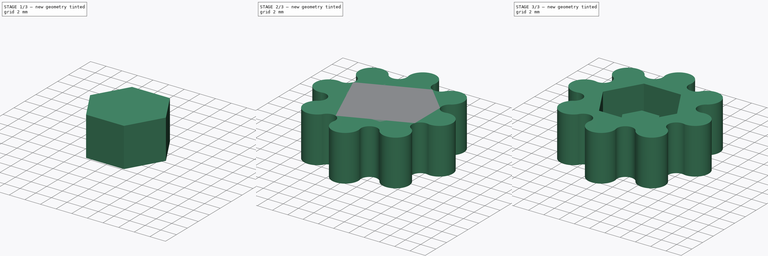
[diagram: build sequence overview — one tinted view per stage of 3, left to right]
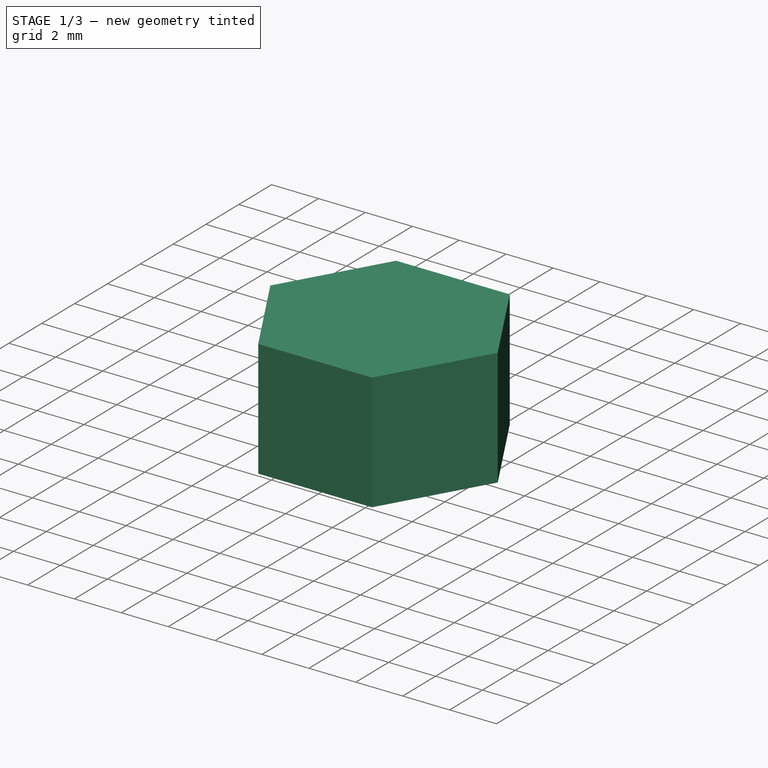
[diagram: stage 1 of 3 — iso view after this stage's code; geometry added in this stage tinted green]
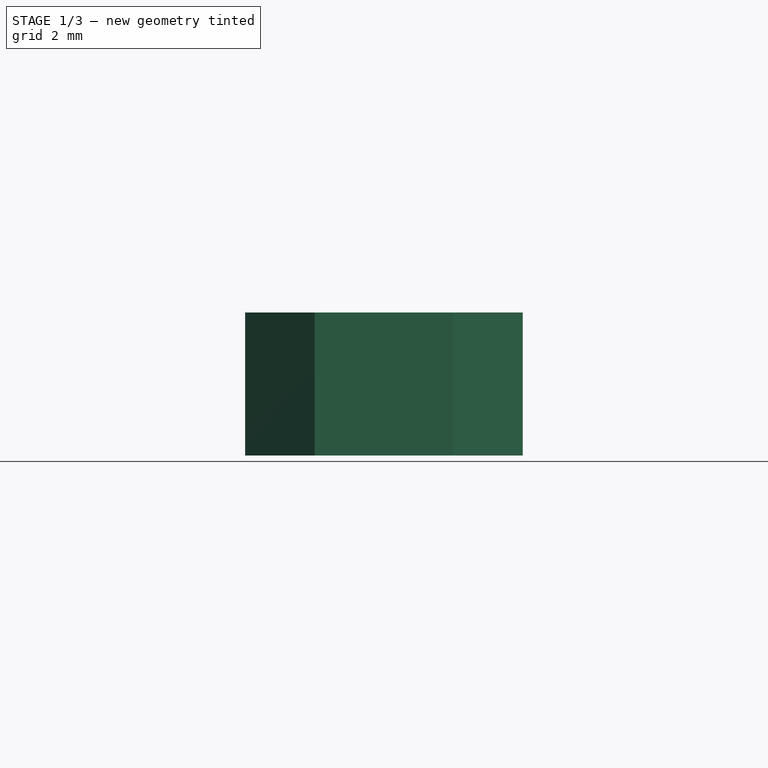
[diagram: stage 1 of 3 — front view after this stage's code; geometry added in this stage tinted green]
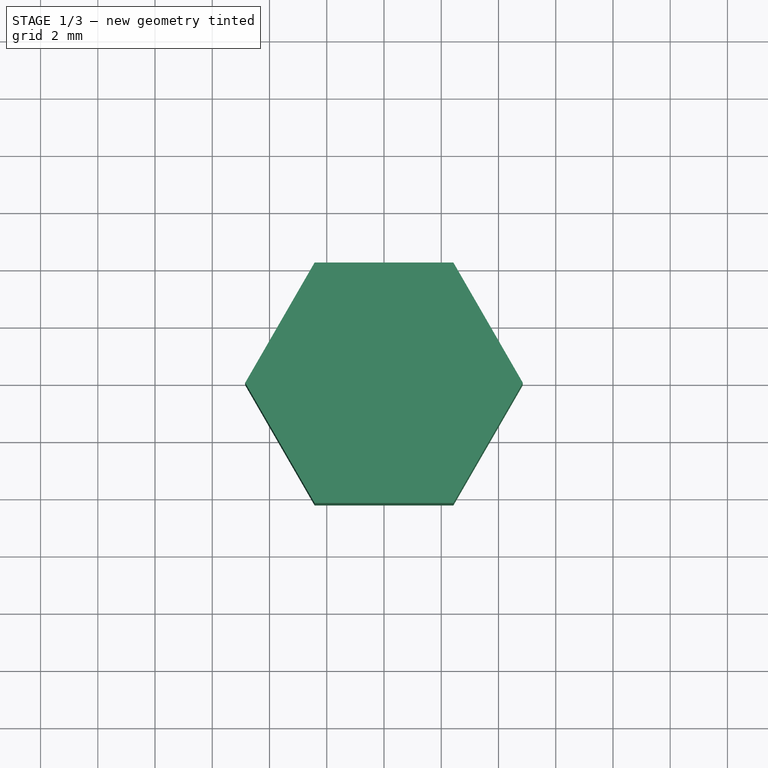
[diagram: stage 1 of 3 — top view after this stage's code; geometry added in this stage tinted green]
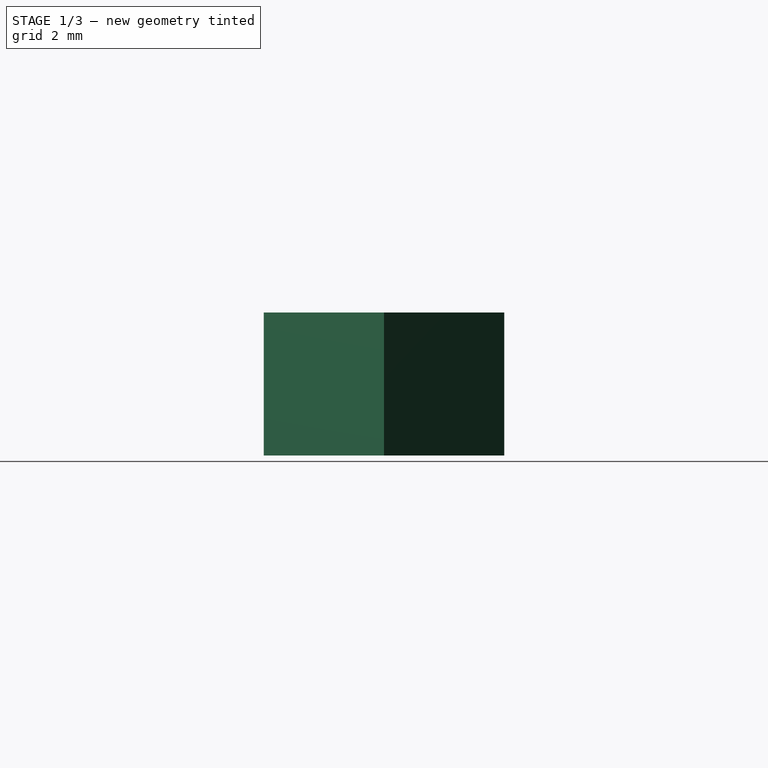
[diagram: stage 1 of 3 — right view after this stage's code; geometry added in this stage tinted green]
FCSTD DOCUMENT  (FreeCAD 0.14R3702 (Git))
Label: M5-Knob-18
License: CC-BY 3.0
LicenseURL: http://creativecommons.org/licenses/by/3.0/
objects: Part::RegularPolygon×2, Part::Extrusion×2, Sketcher::SketchObject×1, PartDesign::Pad×1, Part::Cut×1, Part::MultiFuse×1
note: 9 computed .brp shape members not serialized (recipe doc carries the construction recipe); baked Part::Feature solids carry a one-line shape summary decoded from their .brp

FEATURE [Part::RegularPolygon] RegularPolygon  label="Regular polygon"
  Circumradius = 4.85
  Polygon = 6
FEATURE [Part::Extrusion] Extrude
  Base = -> RegularPolygon
  Dir = (0,0,-5)
  Solid = true
FEATURE [Part::RegularPolygon] RegularPolygon001  label="Regular polygon001"
  Circumradius = 2.31
  Placement = pos=(0,0,-2) rot=(0,0,1;0rad)
  Polygon = 6
FEATURE [Part::Extrusion] Extrude001
  Base = -> RegularPolygon001
  Dir = (0,0,-3)
  Solid = true
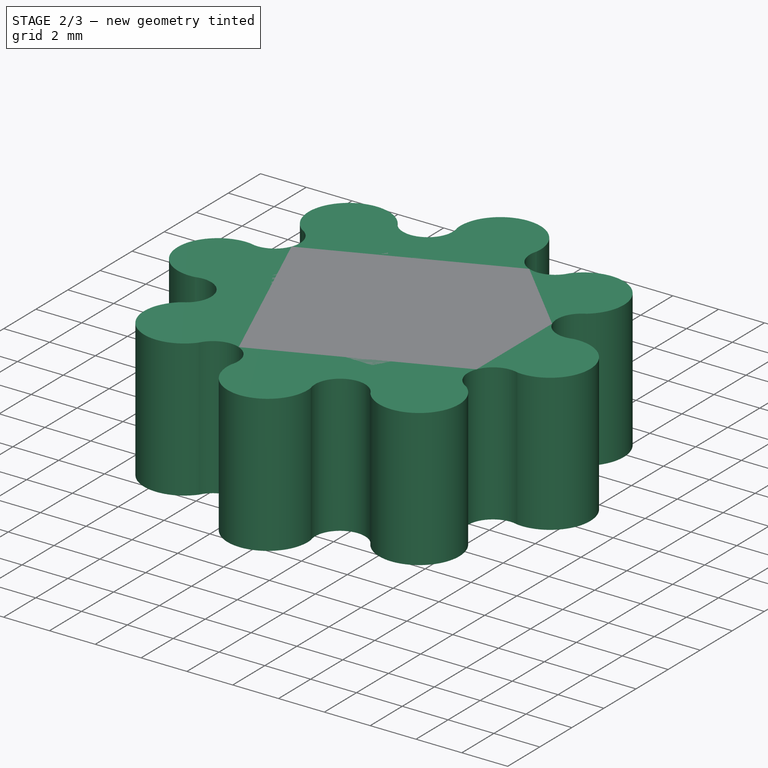
[diagram: stage 2 of 3 — iso view after this stage's code; geometry added in this stage tinted green]
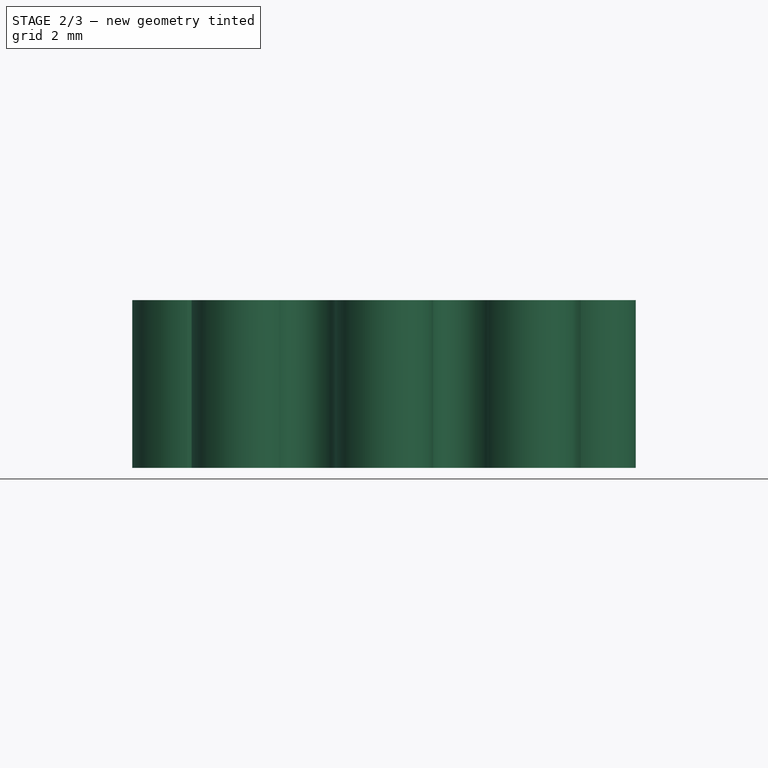
[diagram: stage 2 of 3 — front view after this stage's code; geometry added in this stage tinted green]
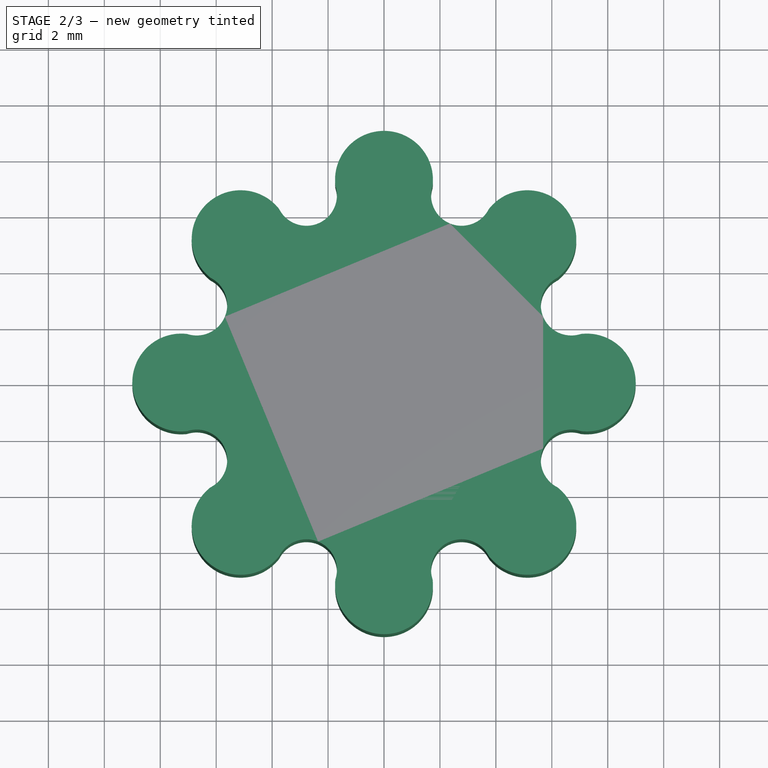
[diagram: stage 2 of 3 — top view after this stage's code; geometry added in this stage tinted green]
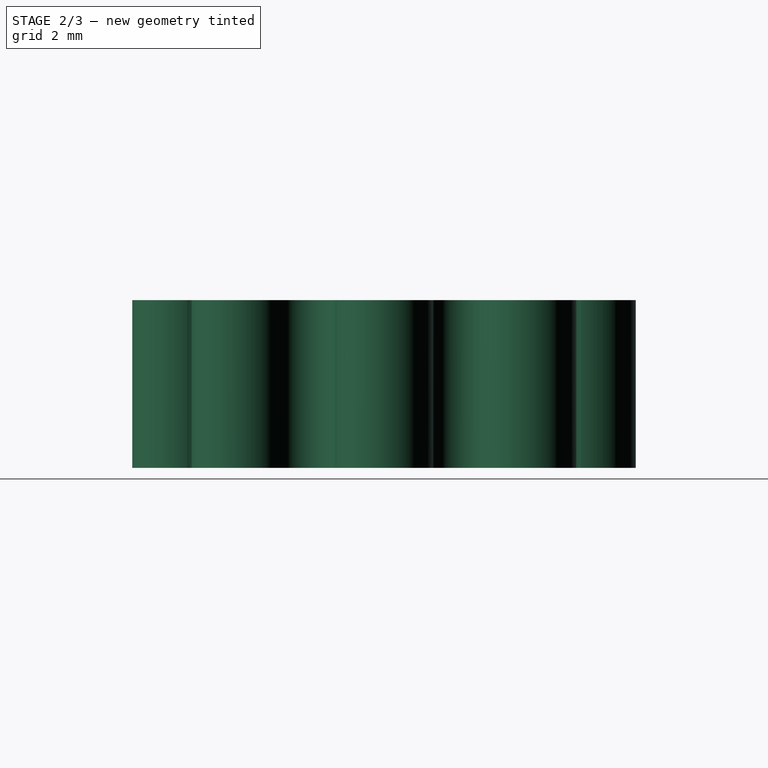
[diagram: stage 2 of 3 — right view after this stage's code; geometry added in this stage tinted green]
FEATURE [Sketcher::SketchObject] Sketch
  sketch-geometry (18):
    g0: Circle [constr] CenterX=0 CenterY=0 CenterZ=0 NormalX=0 NormalY=0 NormalZ=1 Radius=9
    g1: ArcOfCircle CenterX=0 CenterY=7.25 CenterZ=0 NormalX=0 NormalY=0 NormalZ=1 Radius=1.75 StartAngle=6.1622 EndAngle=9.54576
    g2: ArcOfCircle CenterX=7.25 CenterY=0 CenterZ=0 NormalX=0 NormalY=0 NormalZ=1 Radius=1.75 StartAngle=4.5914 EndAngle=7.97497
    g3: ArcOfCircle CenterX=5.12652 CenterY=5.12652 CenterZ=0 NormalX=0 NormalY=0 NormalZ=1 Radius=1.75 StartAngle=5.3768 EndAngle=8.76036
    g4: ArcOfCircle CenterX=2.77445 CenterY=6.69813 CenterZ=0 NormalX=0 NormalY=0 NormalZ=1 Radius=1.09176 StartAngle=2.82426 EndAngle=5.81512
    g5: ArcOfCircle CenterX=6.69813 CenterY=2.77445 CenterZ=0 NormalX=0 NormalY=0 NormalZ=1 Radius=1.09176 StartAngle=2.03886 EndAngle=5.02972
    g6: ArcOfCircle CenterX=0 CenterY=-7.25 CenterZ=0 NormalX=0 NormalY=0 NormalZ=1 Radius=1.75 StartAngle=3.02061 EndAngle=6.40417
    g7: ArcOfCircle CenterX=-7.25 CenterY=0 CenterZ=0 NormalX=0 NormalY=0 NormalZ=1 Radius=1.75 StartAngle=1.44981 EndAngle=4.83337
    g8: ArcOfCircle CenterX=-5.12652 CenterY=5.12652 CenterZ=0 NormalX=0 NormalY=0 NormalZ=1 Radius=1.75 StartAngle=0.664414 EndAngle=4.04798
    g9: ArcOfCircle CenterX=-5.12652 CenterY=-5.12652 CenterZ=0 NormalX=0 NormalY=0 NormalZ=1 Radius=1.75 StartAngle=2.23521 EndAngle=5.61877
    g10: Circle [constr] CenterX=0 CenterY=0 CenterZ=0 NormalX=0 NormalY=0 NormalZ=1 Radius=7.25
    g11: ArcOfCircle CenterX=5.12652 CenterY=-5.12652 CenterZ=0 NormalX=0 NormalY=0 NormalZ=1 Radius=1.75 StartAngle=3.80601 EndAngle=7.18957
    g12: ArcOfCircle CenterX=6.69813 CenterY=-2.77445 CenterZ=0 NormalX=0 NormalY=0 NormalZ=1 Radius=1.09176 StartAngle=1.25346 EndAngle=4.24432
    g13: ArcOfCircle CenterX=2.77445 CenterY=-6.69813 CenterZ=0 NormalX=0 NormalY=0 NormalZ=1 Radius=1.09176 StartAngle=0.468064 EndAngle=3.45893
    g14: ArcOfCircle CenterX=-2.77445 CenterY=6.69813 CenterZ=0 NormalX=0 NormalY=0 NormalZ=1 Radius=1.09176 StartAngle=3.60966 EndAngle=6.60052
    g15: ArcOfCircle CenterX=-6.69813 CenterY=2.77445 CenterZ=0 NormalX=0 NormalY=0 NormalZ=1 Radius=1.09176 StartAngle=4.39505 EndAngle=7.38592
    g16: ArcOfCircle CenterX=-6.69813 CenterY=-2.77445 CenterZ=0 NormalX=0 NormalY=0 NormalZ=1 Radius=1.09176 StartAngle=5.18045 EndAngle=8.17132
    g17: ArcOfCircle CenterX=-2.77445 CenterY=-6.69813 CenterZ=0 NormalX=0 NormalY=0 NormalZ=1 Radius=1.09176 StartAngle=5.96585 EndAngle=8.95671
  constraints (68):
    c: Coincident(g0,g-1)
    c: Radius(g0) = 9
    c: PointOnObject(g1,g-2)
    c: Coincident(g10,g-1)
    c: Radius(g10) = 7.25
    c: PointOnObject(g8,g10)
    c: PointOnObject(g3,g10)
    c: PointOnObject(g5,g10)
    c: PointOnObject(g4,g10)
    c: Coincident(g4,g1)
    c: PointOnObject(g1,g10)
    c: Coincident(g4,g3)
    c: PointOnObject(g3,g10)
    c: Coincident(g5,g3)
    c: PointOnObject(g3,g10)
    c: Coincident(g2,g5)
    c: PointOnObject(g2,g10)
    c: PointOnObject(g11,g10)
    c: PointOnObject(g11,g10)
    c: PointOnObject(g11,g10)
    c: PointOnObject(g12,g10)
    c: Coincident(g12,g2)
    c: Coincident(g12,g11)
    c: PointOnObject(g13,g10)
    c: Coincident(g13,g11)
    c: Coincident(g13,g6)
    c: PointOnObject(g6,g10)
    c: PointOnObject(g6,g10)
    c: PointOnObject(g6,g10)
    c: PointOnObject(g1,g10)
    c: PointOnObject(g8,g10)
    c: PointOnObject(g8,g10)
    c: PointOnObject(g7,g10)
    c: PointOnObject(g7,g10)
    c: PointOnObject(g7,g10)
    c: PointOnObject(g9,g10)
    c: PointOnObject(g9,g10)
    c: PointOnObject(g9,g10)
    c: PointOnObject(g14,g10)
    c: Coincident(g14,g1)
    c: Coincident(g14,g8)
    c: PointOnObject(g1,g10)
    c: PointOnObject(g15,g10)
    c: Coincident(g15,g8)
    c: Coincident(g15,g7)
    c: Coincident(g16,g9)
    c: Coincident(g16,g7)
    c: PointOnObject(g17,g10)
    c: Coincident(g17,g9)
    c: Coincident(g17,g6)
    c: Equal(g1,g3)
    c: Equal(g3,g2)
    c: Equal(g2,g11)
    c: Equal(g11,g6)
    c: Equal(g6,g9)
    c: Equal(g9,g7)
    c: Equal(g7,g8)
    c: Equal(g4,g5)
    c: Equal(g5,g12)
    c: Equal(g12,g13)
    c: Equal(g13,g17)
    c: Equal(g17,g16)
    c: Equal(g16,g15)
    c: Equal(g15,g14)
    c: PointOnObject(g2,g10)
    c: PointOnObject(g2,g10)
    c: PointOnObject(g16,g10)
    c: Tangent(g1,g0)
FEATURE [PartDesign::Pad] Pad
  Length = 6
  Length2 = 100
  Reversed = true
  Sketch = -> Sketch
  Type = 0
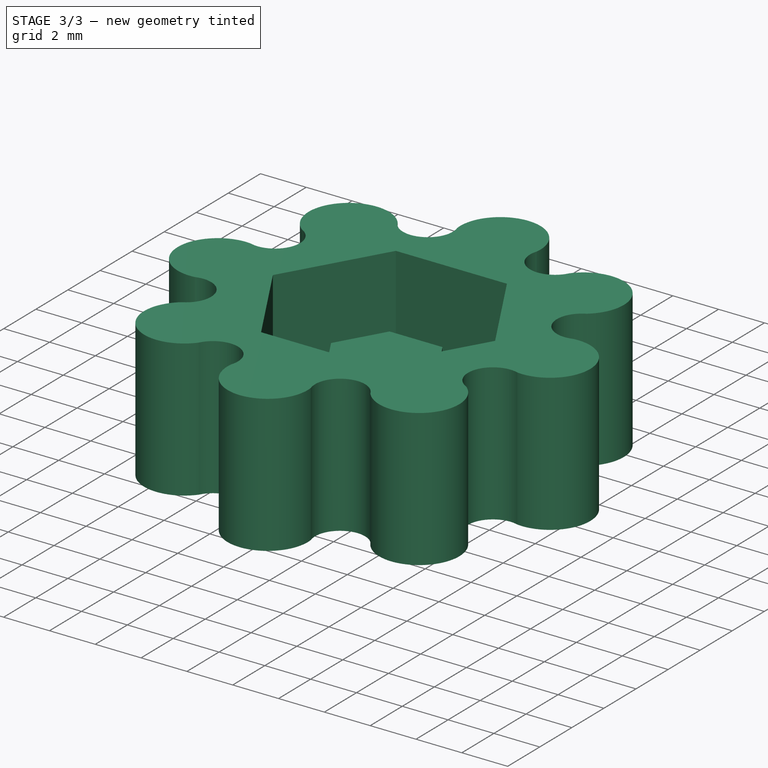
[diagram: stage 3 of 3 — iso view after this stage's code; geometry added in this stage tinted green]
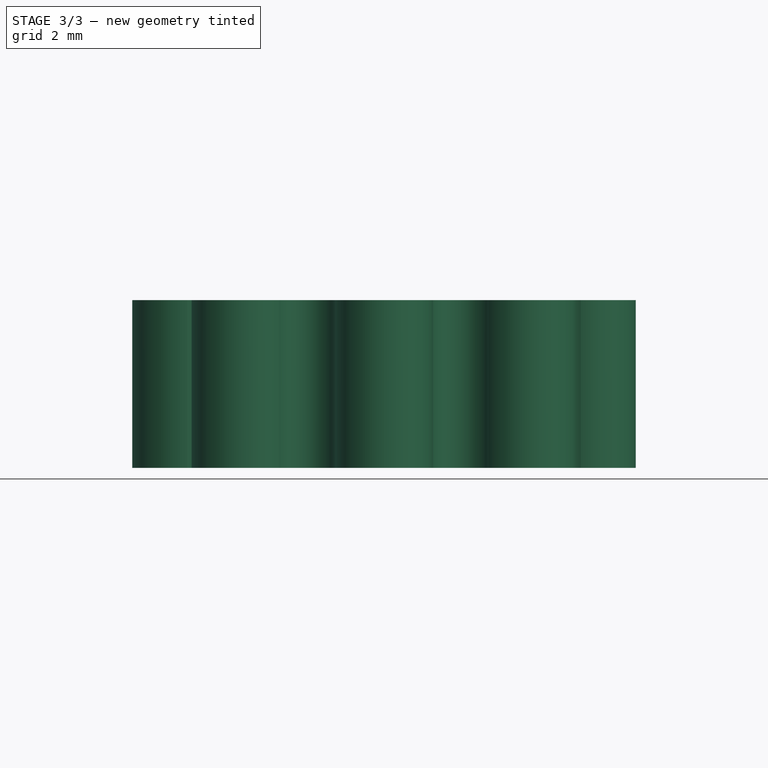
[diagram: stage 3 of 3 — front view after this stage's code; geometry added in this stage tinted green]
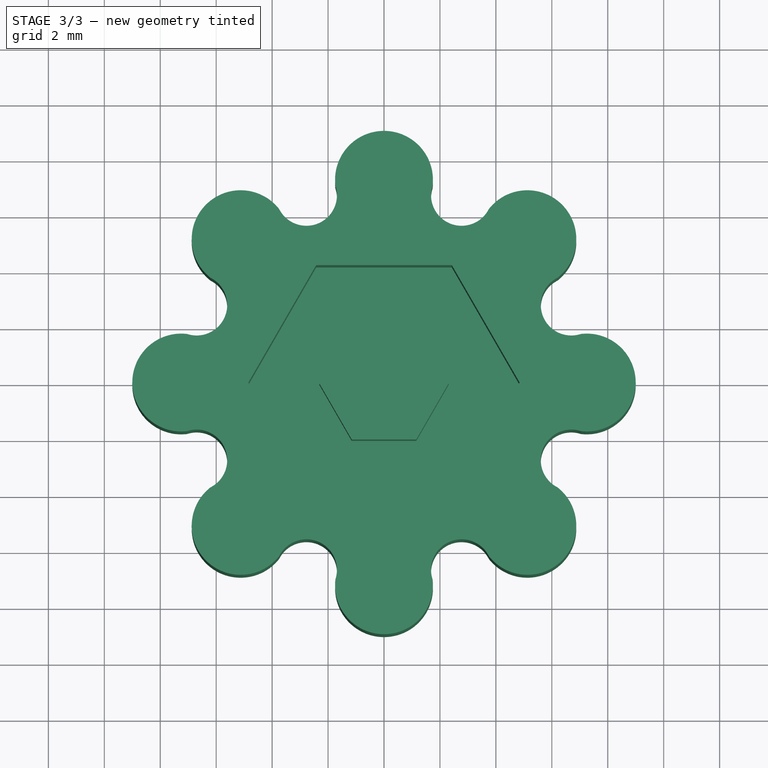
[diagram: stage 3 of 3 — top view after this stage's code; geometry added in this stage tinted green]
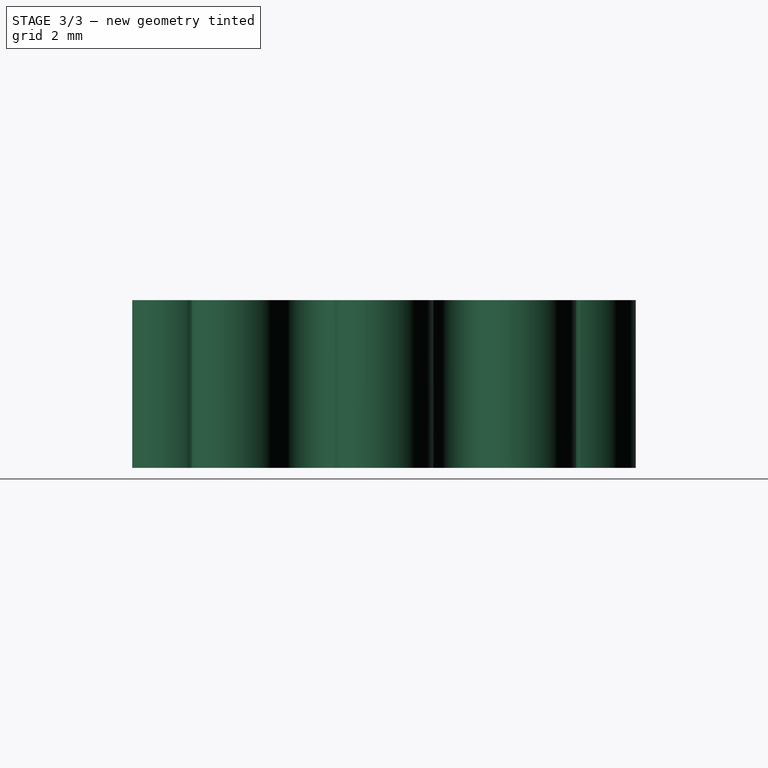
[diagram: stage 3 of 3 — right view after this stage's code; geometry added in this stage tinted green]
FEATURE [Part::Cut] Cut
  Base = -> Pad
  Tool = -> Extrude
FEATURE [Part::MultiFuse] Fusion
  Shapes = -> [Cut,Extrude001]
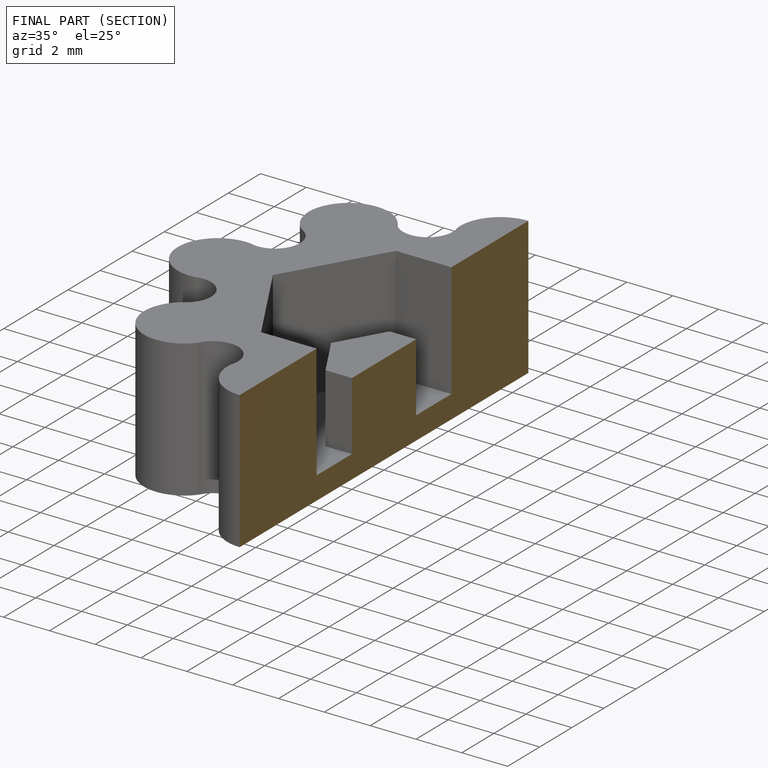
[diagram: finished part — half-section view (interior)]
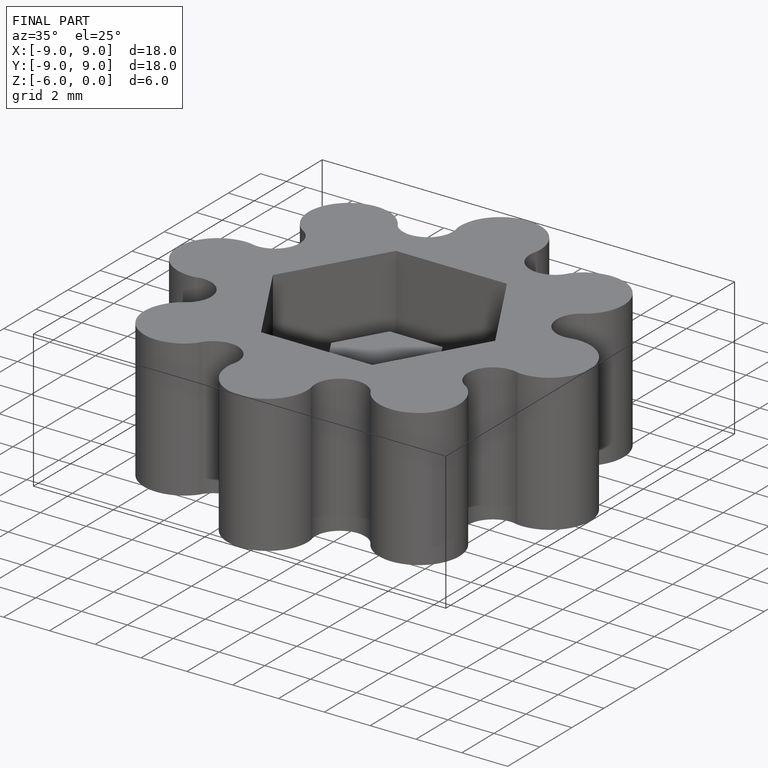
[diagram: finished part — iso view with bounding-box wireframe]
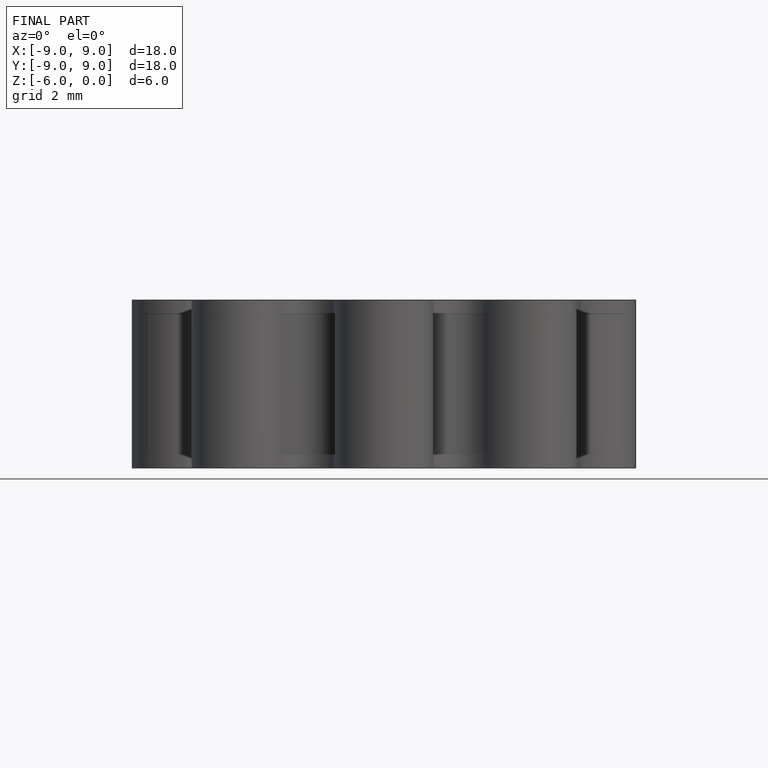
[diagram: finished part — front view with bounding-box wireframe]
